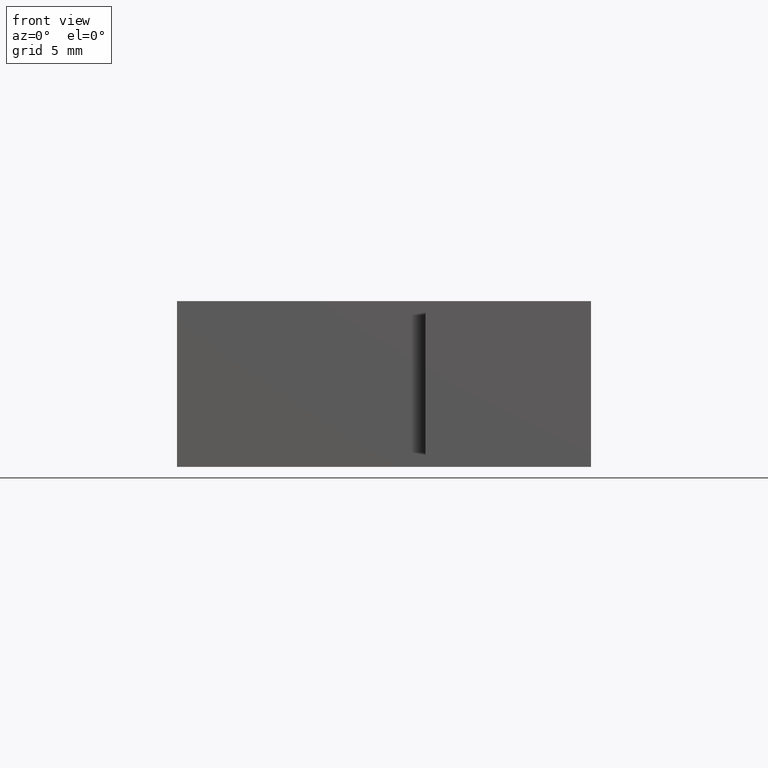
[diagram: clean part render]
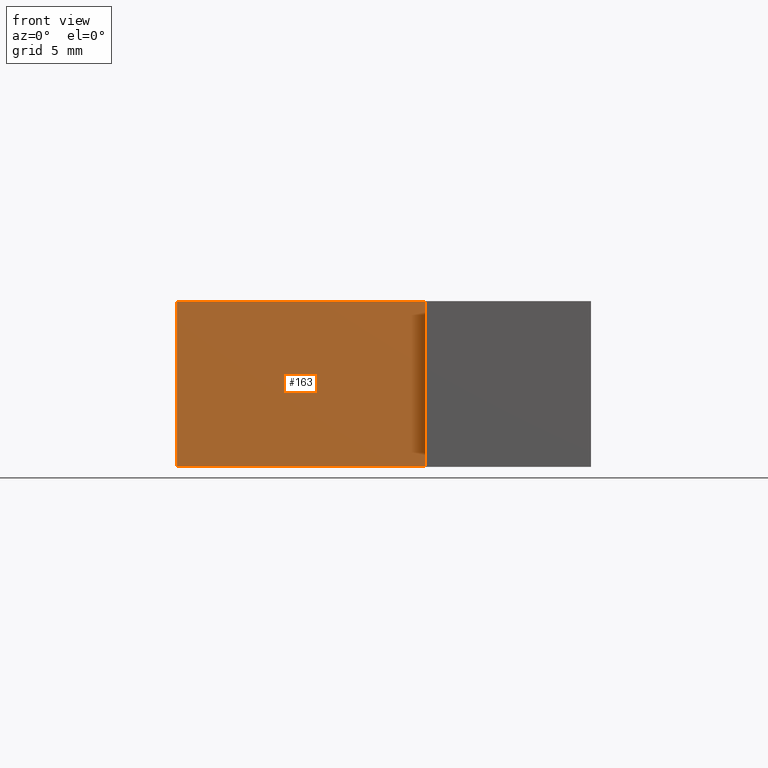
[diagram: same view with one face highlighted and labeled with its STEP entity id]
A machine part, front view. The second image highlights one B-rep face of the part: STEP entity #163.
In plain terms, the highlighted planar face has unit normal (0, -1, 0).
Its self-contained STEP definition (entity closure, byte-faithful):
#17=FACE_OUTER_BOUND('',#26,.T.);
#26=EDGE_LOOP('',(#121,#122,#123,#124));
#36=LINE('',#250,#57);
#41=LINE('',#260,#62);
#43=LINE('',#264,#64);
#44=LINE('',#265,#65);
#57=VECTOR('',#206,10.);
#62=VECTOR('',#213,10.);
#64=VECTOR('',#217,10.);
#65=VECTOR('',#218,10.);
#78=VERTEX_POINT('',#247);
#79=VERTEX_POINT('',#249);
#83=VERTEX_POINT('',#258);
#84=VERTEX_POINT('',#263);
#92=EDGE_CURVE('',#79,#78,#36,.T.);
#97=EDGE_CURVE('',#83,#78,#41,.T.);
#99=EDGE_CURVE('',#83,#84,#43,.T.);
#100=EDGE_CURVE('',#84,#79,#44,.T.);
#121=ORIENTED_EDGE('',*,*,#99,.T.);
#122=ORIENTED_EDGE('',*,*,#100,.T.);
#123=ORIENTED_EDGE('',*,*,#92,.T.);
#124=ORIENTED_EDGE('',*,*,#97,.F.);
#154=PLANE('',#192);
#163=ADVANCED_FACE('',(#17),#154,.T.);
#192=AXIS2_PLACEMENT_3D('',#262,#215,#216);
#206=DIRECTION('',(1.,2.59052039079203E-16,0.));
#213=DIRECTION('',(0.,0.,-1.));
#215=DIRECTION('center_axis',(2.59052039079203E-16,-1.,0.));
#216=DIRECTION('ref_axis',(0.,0.,-1.));
#217=DIRECTION('',(-1.,-2.59052039079203E-16,0.));
#218=DIRECTION('',(0.,0.,-1.));
#247=CARTESIAN_POINT('',(-10.,2.,-5.));
#249=CARTESIAN_POINT('',(-25.,2.,-5.));
#250=CARTESIAN_POINT('',(-10.,2.,-5.));
#258=CARTESIAN_POINT('',(-10.,2.,5.));
#260=CARTESIAN_POINT('',(-10.,2.,0.));
#262=CARTESIAN_POINT('Origin',(-10.,2.,0.));
#263=CARTESIAN_POINT('',(-25.,2.,5.));
#264=CARTESIAN_POINT('',(-10.,2.,5.));
#265=CARTESIAN_POINT('',(-25.,2.,0.));